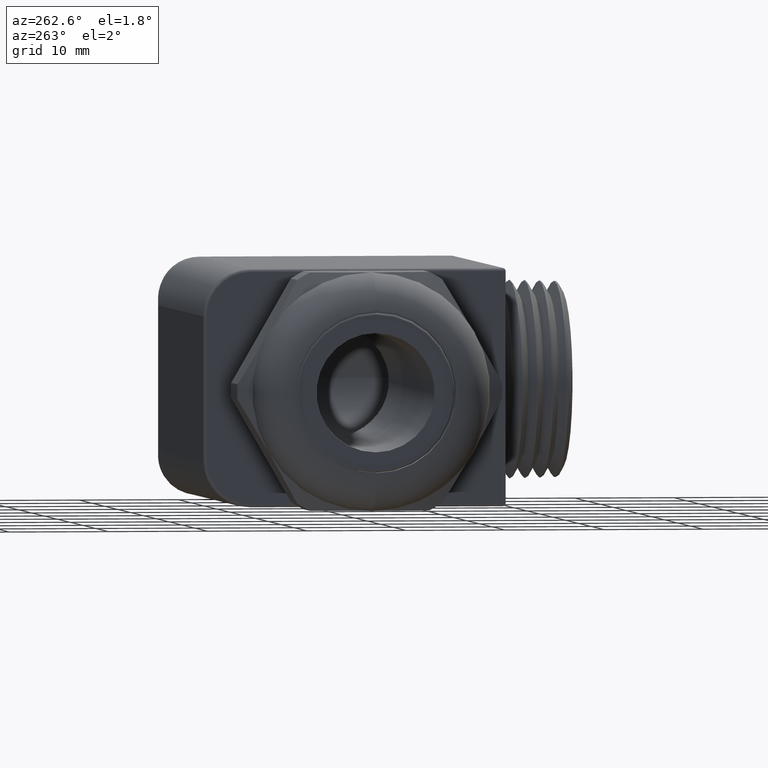
[diagram: clean part render]
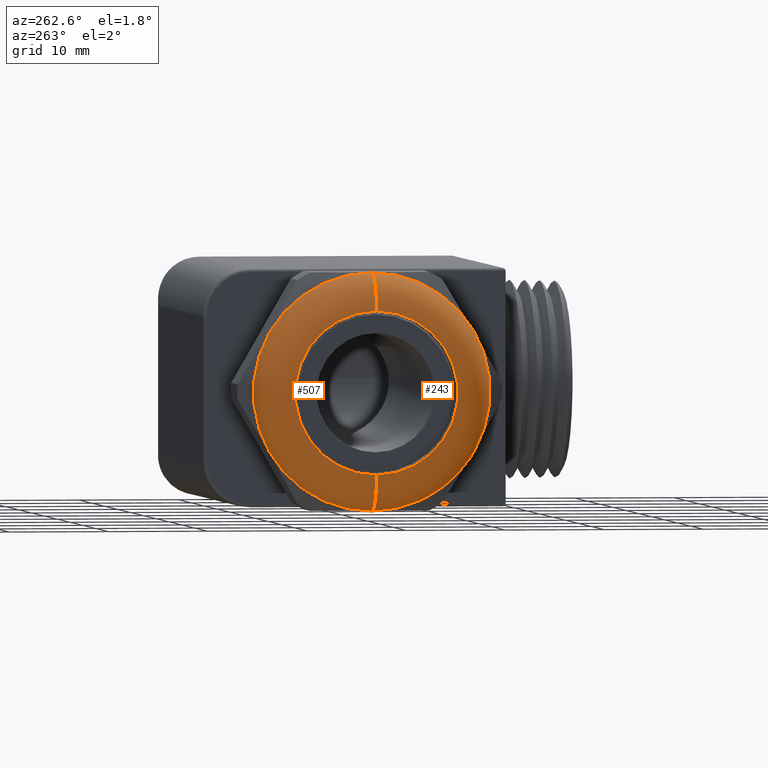
[diagram: same view with one multi-face feature highlighted, each face labeled with its STEP entity id]
A machine part, auxiliary view. The highlighted faces form ONE feature: a constant-radius fillet chain: 2 tangent blend faces with common blend radius 3.7298 mm. The faces share edges in the B-rep.
Their STEP definitions:
[1] entity #243 (Torus):
#243 = ADVANCED_FACE ( 'NONE', ( #1964 ), #1961, .T. ) ;
#244 = EDGE_LOOP ( 'NONE', ( #245, #246, #247, #318 ) ) ;
#245 = ORIENTED_EDGE ( 'NONE', *, *, #510, .F. ) ;
#246 = ORIENTED_EDGE ( 'NONE', *, *, #316, .F. ) ;
#247 = ORIENTED_EDGE ( 'NONE', *, *, #764, .T. ) ;
#252 = EDGE_CURVE ( 'NONE', #511, #512, #2062, .T. ) ;
#316 = EDGE_CURVE ( 'NONE', #736, #735, #2040, .T. ) ;
#318 = ORIENTED_EDGE ( 'NONE', *, *, #252, .F. ) ;
#510 = EDGE_CURVE ( 'NONE', #735, #511, #2487, .T. ) ;
#511 = VERTEX_POINT ( 'NONE', #2403 ) ;
#512 = VERTEX_POINT ( 'NONE', #2402 ) ;
#735 = VERTEX_POINT ( 'NONE', #2959 ) ;
#736 = VERTEX_POINT ( 'NONE', #2958 ) ;
#764 = EDGE_CURVE ( 'NONE', #736, #512, #2969, .T. ) ;
#1944 = DIRECTION ( 'NONE',  ( 0.0000000000000000000, 0.0000000000000000000, -1.000000000000000000 ) ) ;
#1945 = DIRECTION ( 'NONE',  ( 1.000000000000000000, 0.0000000000000000000, 0.0000000000000000000 ) ) ;
#1960 = AXIS2_PLACEMENT_3D ( 'NONE', #1963, #1945, #1944 ) ;
#1961 = TOROIDAL_SURFACE ( 'NONE', #1960, 0.3231578947368419800, 0.1468421052631579100 ) ;
#1963 = CARTESIAN_POINT ( 'NONE',  ( -0.5251578947368421600, 0.0000000000000000000, 0.0000000000000000000 ) ) ;
#1964 = FACE_OUTER_BOUND ( 'NONE', #244, .T. ) ;
#1985 = DIRECTION ( 'NONE',  ( 0.0000000000000000000, 0.0000000000000000000, -1.000000000000000000 ) ) ;
#2032 = DIRECTION ( 'NONE',  ( 0.0000000000000000000, 0.0000000000000000000, -1.000000000000000000 ) ) ;
#2033 = DIRECTION ( 'NONE',  ( -1.000000000000000000, 0.0000000000000000000, 0.0000000000000000000 ) ) ;
#2034 = CARTESIAN_POINT ( 'NONE',  ( -0.6720000000000001500, 0.0000000000000000000, 0.0000000000000000000 ) ) ;
#2035 = AXIS2_PLACEMENT_3D ( 'NONE', #2034, #2033, #2032 ) ;
#2040 = CIRCLE ( 'NONE', #2035, 0.3231578947368419800 ) ;
#2048 = CARTESIAN_POINT ( 'NONE',  ( -0.5251578947368421600, 0.0000000000000000000, 0.0000000000000000000 ) ) ;
#2060 = DIRECTION ( 'NONE',  ( 1.000000000000000000, 0.0000000000000000000, 0.0000000000000000000 ) ) ;
#2061 = AXIS2_PLACEMENT_3D ( 'NONE', #2048, #2060, #1985 ) ;
#2062 = CIRCLE ( 'NONE', #2061, 0.4699999999999999200 ) ;
#2402 = CARTESIAN_POINT ( 'NONE',  ( -0.5251578947368421600, 5.755839955992558400E-017, -0.4699999999999999200 ) ) ;
#2403 = CARTESIAN_POINT ( 'NONE',  ( -0.5251578947368421600, 0.0000000000000000000, 0.4699999999999999200 ) ) ;
#2404 = DIRECTION ( 'NONE',  ( 0.0000000000000000000, 1.224646799147353200E-016, 1.000000000000000000 ) ) ;
#2405 = DIRECTION ( 'NONE',  ( 0.0000000000000000000, 1.000000000000000000, -1.224646799147353200E-016 ) ) ;
#2485 = CARTESIAN_POINT ( 'NONE',  ( -0.5251578947368421600, 3.957542814086708400E-017, 0.3231578947368419800 ) ) ;
#2486 = AXIS2_PLACEMENT_3D ( 'NONE', #2485, #2405, #2404 ) ;
#2487 = CIRCLE ( 'NONE', #2486, 0.1468421052631579100 ) ;
#2796 = DIRECTION ( 'NONE',  ( 0.0000000000000000000, 0.0000000000000000000, -1.000000000000000000 ) ) ;
#2797 = DIRECTION ( 'NONE',  ( 0.0000000000000000000, -1.000000000000000000, 0.0000000000000000000 ) ) ;
#2798 = AXIS2_PLACEMENT_3D ( 'NONE', #2968, #2797, #2796 ) ;
#2958 = CARTESIAN_POINT ( 'NONE',  ( -0.6720000000000001500, 0.0000000000000000000, -0.3231578947368419800 ) ) ;
#2959 = CARTESIAN_POINT ( 'NONE',  ( -0.6720000000000001500, 4.856691385039633100E-017, 0.3231578947368419800 ) ) ;
#2968 = CARTESIAN_POINT ( 'NONE',  ( -0.5251578947368421600, 0.0000000000000000000, -0.3231578947368419800 ) ) ;
#2969 = CIRCLE ( 'NONE', #2798, 0.1468421052631579100 ) ;
[2] entity #507 (Torus):
#507 = ADVANCED_FACE ( 'NONE', ( #2494 ), #2493, .T. ) ;
#509 = ORIENTED_EDGE ( 'NONE', *, *, #510, .T. ) ;
#510 = EDGE_CURVE ( 'NONE', #735, #511, #2487, .T. ) ;
#511 = VERTEX_POINT ( 'NONE', #2403 ) ;
#512 = VERTEX_POINT ( 'NONE', #2402 ) ;
#732 = EDGE_LOOP ( 'NONE', ( #733, #509, #761, #763 ) ) ;
#733 = ORIENTED_EDGE ( 'NONE', *, *, #734, .F. ) ;
#734 = EDGE_CURVE ( 'NONE', #735, #736, #2967, .T. ) ;
#735 = VERTEX_POINT ( 'NONE', #2959 ) ;
#736 = VERTEX_POINT ( 'NONE', #2958 ) ;
#761 = ORIENTED_EDGE ( 'NONE', *, *, #762, .F. ) ;
#762 = EDGE_CURVE ( 'NONE', #512, #511, #2974, .T. ) ;
#763 = ORIENTED_EDGE ( 'NONE', *, *, #764, .F. ) ;
#764 = EDGE_CURVE ( 'NONE', #736, #512, #2969, .T. ) ;
#2402 = CARTESIAN_POINT ( 'NONE',  ( -0.5251578947368421600, 5.755839955992558400E-017, -0.4699999999999999200 ) ) ;
#2403 = CARTESIAN_POINT ( 'NONE',  ( -0.5251578947368421600, 0.0000000000000000000, 0.4699999999999999200 ) ) ;
#2404 = DIRECTION ( 'NONE',  ( 0.0000000000000000000, 1.224646799147353200E-016, 1.000000000000000000 ) ) ;
#2405 = DIRECTION ( 'NONE',  ( 0.0000000000000000000, 1.000000000000000000, -1.224646799147353200E-016 ) ) ;
#2485 = CARTESIAN_POINT ( 'NONE',  ( -0.5251578947368421600, 3.957542814086708400E-017, 0.3231578947368419800 ) ) ;
#2486 = AXIS2_PLACEMENT_3D ( 'NONE', #2485, #2405, #2404 ) ;
#2487 = CIRCLE ( 'NONE', #2486, 0.1468421052631579100 ) ;
#2489 = DIRECTION ( 'NONE',  ( 0.0000000000000000000, 0.0000000000000000000, -1.000000000000000000 ) ) ;
#2490 = DIRECTION ( 'NONE',  ( 1.000000000000000000, 0.0000000000000000000, 0.0000000000000000000 ) ) ;
#2491 = CARTESIAN_POINT ( 'NONE',  ( -0.5251578947368421600, 0.0000000000000000000, 0.0000000000000000000 ) ) ;
#2492 = AXIS2_PLACEMENT_3D ( 'NONE', #2491, #2490, #2489 ) ;
#2493 = TOROIDAL_SURFACE ( 'NONE', #2492, 0.3231578947368419800, 0.1468421052631579100 ) ;
#2494 = FACE_OUTER_BOUND ( 'NONE', #732, .T. ) ;
#2796 = DIRECTION ( 'NONE',  ( 0.0000000000000000000, 0.0000000000000000000, -1.000000000000000000 ) ) ;
#2797 = DIRECTION ( 'NONE',  ( 0.0000000000000000000, -1.000000000000000000, 0.0000000000000000000 ) ) ;
#2798 = AXIS2_PLACEMENT_3D ( 'NONE', #2968, #2797, #2796 ) ;
#2958 = CARTESIAN_POINT ( 'NONE',  ( -0.6720000000000001500, 0.0000000000000000000, -0.3231578947368419800 ) ) ;
#2959 = CARTESIAN_POINT ( 'NONE',  ( -0.6720000000000001500, 4.856691385039633100E-017, 0.3231578947368419800 ) ) ;
#2960 = DIRECTION ( 'NONE',  ( 0.0000000000000000000, 0.0000000000000000000, -1.000000000000000000 ) ) ;
#2961 = DIRECTION ( 'NONE',  ( -1.000000000000000000, 0.0000000000000000000, 0.0000000000000000000 ) ) ;
#2962 = CARTESIAN_POINT ( 'NONE',  ( -0.6720000000000001500, 0.0000000000000000000, 0.0000000000000000000 ) ) ;
#2963 = AXIS2_PLACEMENT_3D ( 'NONE', #2962, #2961, #2960 ) ;
#2967 = CIRCLE ( 'NONE', #2963, 0.3231578947368419800 ) ;
#2968 = CARTESIAN_POINT ( 'NONE',  ( -0.5251578947368421600, 0.0000000000000000000, -0.3231578947368419800 ) ) ;
#2969 = CIRCLE ( 'NONE', #2798, 0.1468421052631579100 ) ;
#2970 = DIRECTION ( 'NONE',  ( 0.0000000000000000000, 0.0000000000000000000, -1.000000000000000000 ) ) ;
#2971 = DIRECTION ( 'NONE',  ( 1.000000000000000000, 0.0000000000000000000, 0.0000000000000000000 ) ) ;
#2972 = CARTESIAN_POINT ( 'NONE',  ( -0.5251578947368421600, 0.0000000000000000000, 0.0000000000000000000 ) ) ;
#2973 = AXIS2_PLACEMENT_3D ( 'NONE', #2972, #2971, #2970 ) ;
#2974 = CIRCLE ( 'NONE', #2973, 0.4699999999999999200 ) ;